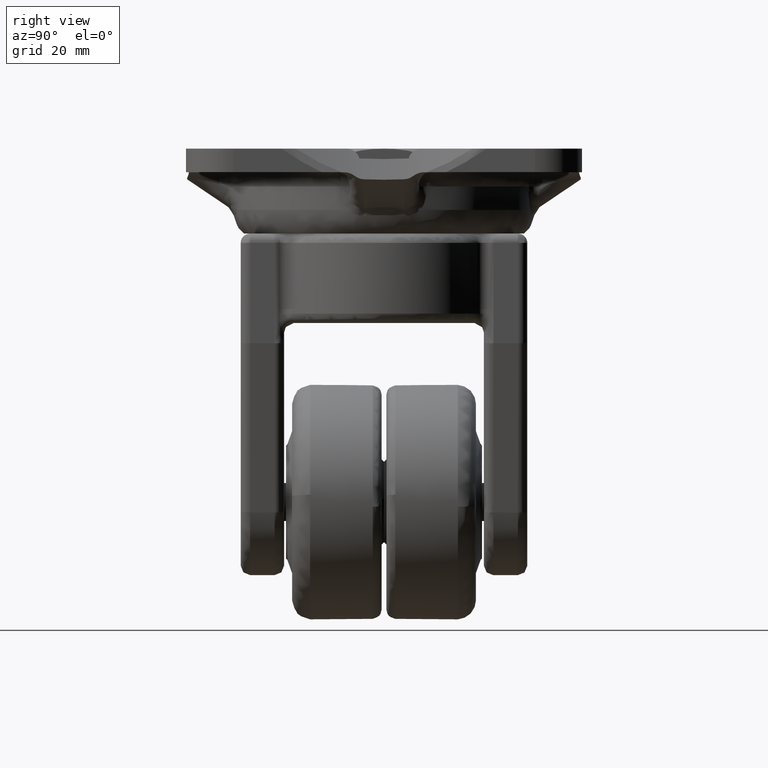
[diagram: clean part render]
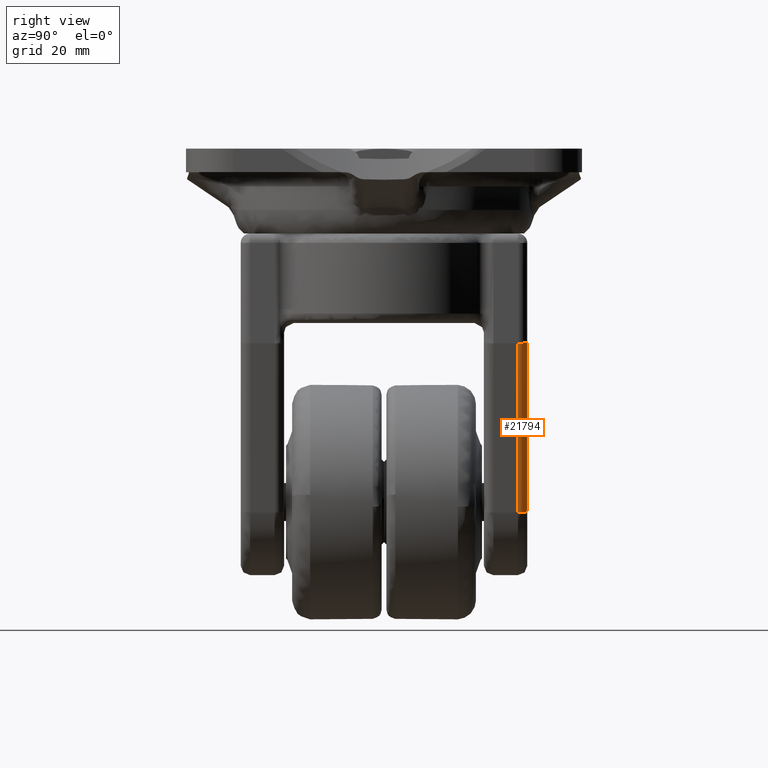
[diagram: same view with one face highlighted and labeled with its STEP entity id]
A machine part, right view. The second image highlights one B-rep face of the part: STEP entity #21794.
In plain terms, the highlighted face is a freeform B-spline surface patch.
Its self-contained STEP definition (entity closure, byte-faithful):
#21734=CARTESIAN_POINT('',(20.627050723156199,28.312761225269330,-22.391891951274481));
#21735=CARTESIAN_POINT('',(15.208559449406160,28.312761225269330,-60.123310923585677));
#21736=CARTESIAN_POINT('',(20.721288370161140,30.493300859650166,-22.405425125532481));
#21737=CARTESIAN_POINT('',(15.302797096411092,30.493300859650166,-60.136844097843706));
#21738=CARTESIAN_POINT('',(18.562891397324240,30.398096443163709,-22.095464475200529));
#21739=CARTESIAN_POINT('',(13.144400123574201,30.398096443163709,-59.826883447511747));
#21747=(BOUNDED_SURFACE()B_SPLINE_SURFACE(1,2,((#21734,#21736,#21738),(#21735,#21737,#21739)),.UNSPECIFIED.,.F.,.F.,.U.)B_SPLINE_SURFACE_WITH_KNOTS((2,2),(3,3),(0.0,38.118499778293902),(0.0,3.520084247134653),.UNSPECIFIED.)GEOMETRIC_REPRESENTATION_ITEM()RATIONAL_B_SPLINE_SURFACE(((1.0,0.675590207615661,1.0),(1.0,0.675590207615661,1.0)))REPRESENTATION_ITEM('')SURFACE());
#21748=CARTESIAN_POINT('',(18.500000000000000,30.399999999999999,-23.147121216816199));
#21749=VERTEX_POINT('',#21748);
#21750=CARTESIAN_POINT('',(20.500000000000000,28.399999999999999,-23.289995233374249));
#21751=VERTEX_POINT('',#21750);
#21752=CARTESIAN_POINT('',(18.500000000000000,30.399999999999999,-23.147121216816199));
#21753=CARTESIAN_POINT('',(20.499999999999996,30.400000000000006,-23.289995233374235));
#21754=CARTESIAN_POINT('',(20.500000000000000,28.399999999999999,-23.289995233374238));
#21762=(BOUNDED_CURVE()B_SPLINE_CURVE(2,(#21752,#21753,#21754),.UNSPECIFIED.,.F.,.U.)CURVE()GEOMETRIC_REPRESENTATION_ITEM()QUASI_UNIFORM_CURVE()RATIONAL_B_SPLINE_CURVE((1.0,0.707106781186548,1.0))REPRESENTATION_ITEM(''));
#21763=EDGE_CURVE('',#21749,#21751,#21762,.T.);
#21764=ORIENTED_EDGE('',*,*,#21763,.T.);
#21765=CARTESIAN_POINT('',(15.342601999999950,28.399999999999999,-59.203302999999998));
#21766=VERTEX_POINT('',#21765);
#21767=CARTESIAN_POINT('',(15.342601999999950,28.399999999999999,-59.203302999999998));
#21768=CARTESIAN_POINT('',(20.500000000000000,28.399999999999999,-23.289995233374249));
#21769=QUASI_UNIFORM_CURVE('',1,(#21767,#21768),.UNSPECIFIED.,.F.,.U.);
#21770=EDGE_CURVE('',#21766,#21751,#21769,.T.);
#21771=ORIENTED_EDGE('',*,*,#21770,.F.);
#21772=CARTESIAN_POINT('',(13.362911971980701,30.399999999999999,-58.919005896055303));
#21773=VERTEX_POINT('',#21772);
#21774=CARTESIAN_POINT('',(15.342601999999950,28.399999999999999,-59.203302999999998));
#21775=CARTESIAN_POINT('',(15.342602634037453,30.400000000000002,-59.203303069036885));
#21776=CARTESIAN_POINT('',(13.362911971980701,30.399999999999999,-58.919005896055282));
#21784=(BOUNDED_CURVE()B_SPLINE_CURVE(2,(#21774,#21775,#21776),.UNSPECIFIED.,.F.,.U.)CURVE()GEOMETRIC_REPRESENTATION_ITEM()QUASI_UNIFORM_CURVE()RATIONAL_B_SPLINE_CURVE((1.0,0.707106781186548,1.0))REPRESENTATION_ITEM(''));
#21785=EDGE_CURVE('',#21766,#21773,#21784,.T.);
#21786=ORIENTED_EDGE('',*,*,#21785,.T.);
#21787=CARTESIAN_POINT('',(18.500000000000000,30.399999999999999,-23.147121216816199));
#21788=CARTESIAN_POINT('',(13.362911971980701,30.399999999999999,-58.919005896055303));
#21789=QUASI_UNIFORM_CURVE('',1,(#21787,#21788),.UNSPECIFIED.,.F.,.U.);
#21790=EDGE_CURVE('',#21749,#21773,#21789,.T.);
#21791=ORIENTED_EDGE('',*,*,#21790,.F.);
#21792=EDGE_LOOP('',(#21764,#21771,#21786,#21791));
#21793=FACE_OUTER_BOUND('',#21792,.T.);
#21794=ADVANCED_FACE('',(#21793),#21747,.T.);